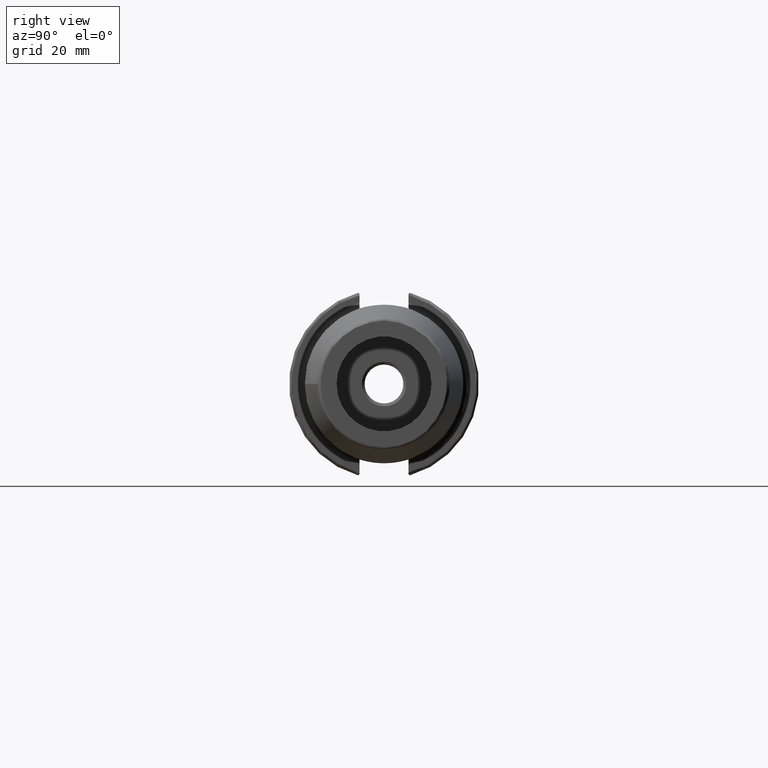
[diagram: clean part render]
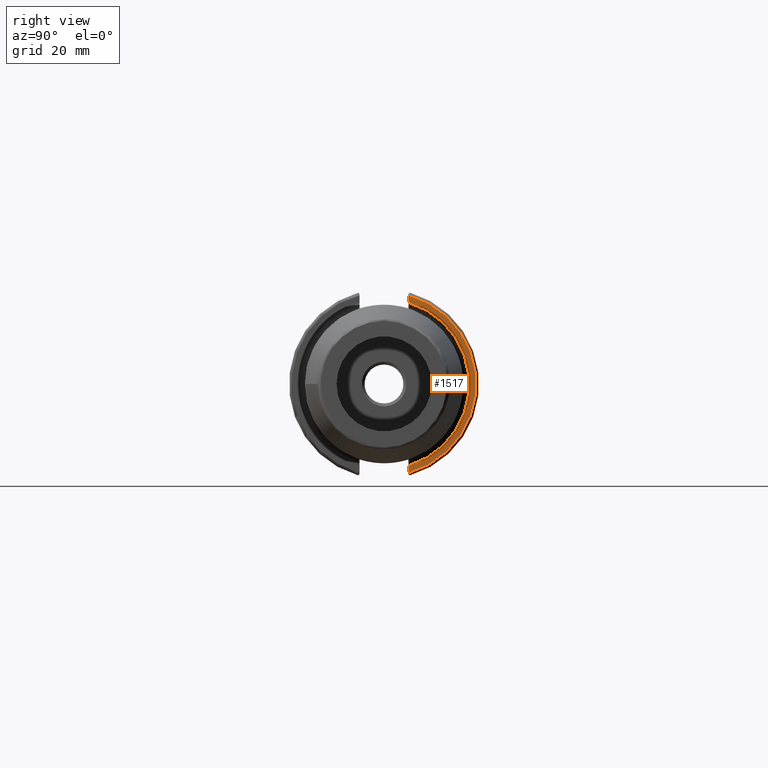
[diagram: same view with one face highlighted and labeled with its STEP entity id]
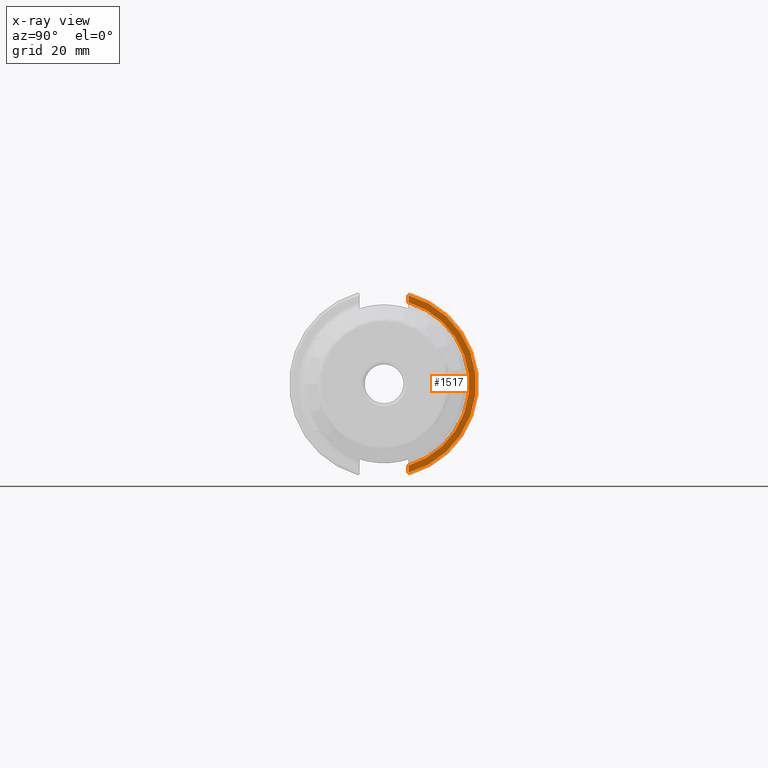
[diagram: x-ray of the same camera — body ghosted, the highlighted face saturated]
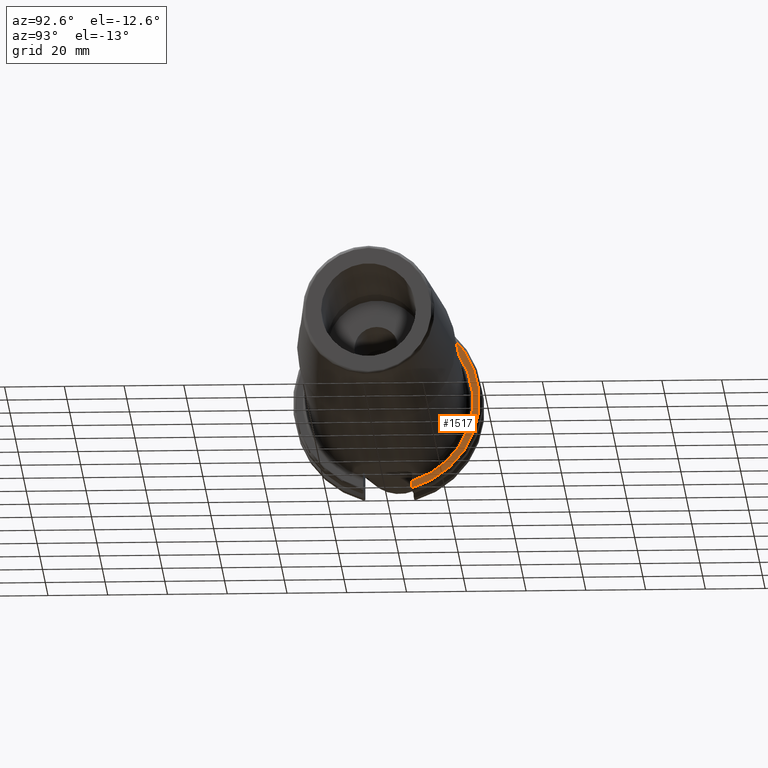
[diagram: same view with one face highlighted and labeled with its STEP entity id]
A machine part, right view. The second image highlights one B-rep face of the part: STEP entity #1517.
The next image is the same camera in x-ray: the body ghosted, the highlighted face saturated — about 0% of this face is hidden behind the body in this view.
A second angle (auxiliary view) of the same face is appended — the face is thin or edge-on in the first view.
In plain terms, the highlighted planar face has unit normal (1, 0, 0).
Its self-contained STEP definition (entity closure, byte-faithful):
#67=PLANE('',#1648);
#135=FACE_OUTER_BOUND('',#227,.T.);
#227=EDGE_LOOP('',(#1072,#1073,#1074,#1075));
#321=CIRCLE('',#1632,28.5);
#330=CIRCLE('',#1649,30.75);
#398=LINE('',#2505,#484);
#399=LINE('',#2508,#485);
#484=VECTOR('',#1882,10.);
#485=VECTOR('',#1885,10.);
#622=VERTEX_POINT('',#2371);
#623=VERTEX_POINT('',#2382);
#637=VERTEX_POINT('',#2504);
#638=VERTEX_POINT('',#2506);
#787=EDGE_CURVE('',#622,#623,#321,.T.);
#807=EDGE_CURVE('',#622,#637,#398,.T.);
#808=EDGE_CURVE('',#638,#637,#330,.T.);
#809=EDGE_CURVE('',#638,#623,#399,.T.);
#1072=ORIENTED_EDGE('',*,*,#787,.F.);
#1073=ORIENTED_EDGE('',*,*,#807,.T.);
#1074=ORIENTED_EDGE('',*,*,#808,.F.);
#1075=ORIENTED_EDGE('',*,*,#809,.T.);
#1517=ADVANCED_FACE('',(#135),#67,.T.);
#1632=AXIS2_PLACEMENT_3D('',#2383,#1843,#1844);
#1648=AXIS2_PLACEMENT_3D('',#2503,#1880,#1881);
#1649=AXIS2_PLACEMENT_3D('',#2507,#1883,#1884);
#1843=DIRECTION('center_axis',(1.,0.,0.));
#1844=DIRECTION('ref_axis',(0.,0.999990043367962,0.00446241693951042));
#1880=DIRECTION('center_axis',(1.,0.,0.));
#1881=DIRECTION('ref_axis',(0.,0.,-1.));
#1882=DIRECTION('',(0.,0.,-1.));
#1883=DIRECTION('center_axis',(-1.,0.,0.));
#1884=DIRECTION('ref_axis',(0.,1.,-6.12323399573677E-17));
#1885=DIRECTION('',(0.,0.,-1.));
#2371=CARTESIAN_POINT('',(19.05,8.19,-27.2978735435565));
#2382=CARTESIAN_POINT('',(19.05,8.19,27.2978735435565));
#2383=CARTESIAN_POINT('Origin',(19.05,0.,0.));
#2503=CARTESIAN_POINT('Origin',(19.05,0.,0.));
#2504=CARTESIAN_POINT('',(19.05,8.19,-29.6392712461019));
#2505=CARTESIAN_POINT('',(19.05,8.19,-11.3));
#2506=CARTESIAN_POINT('',(19.05,8.19,29.6392712461019));
#2507=CARTESIAN_POINT('Origin',(19.05,0.,0.));
#2508=CARTESIAN_POINT('',(19.05,8.19,12.5));